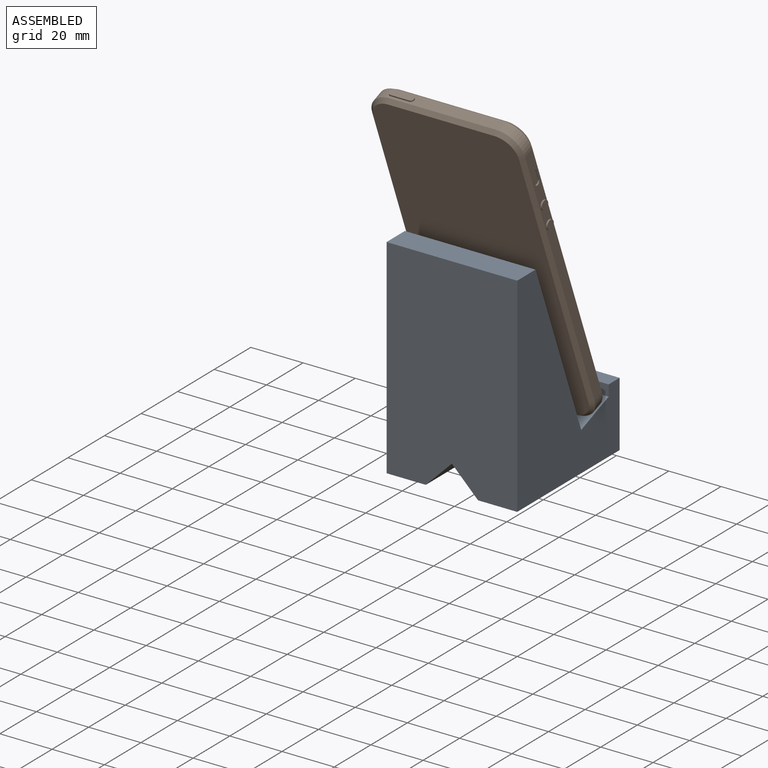
[diagram: assembled view]
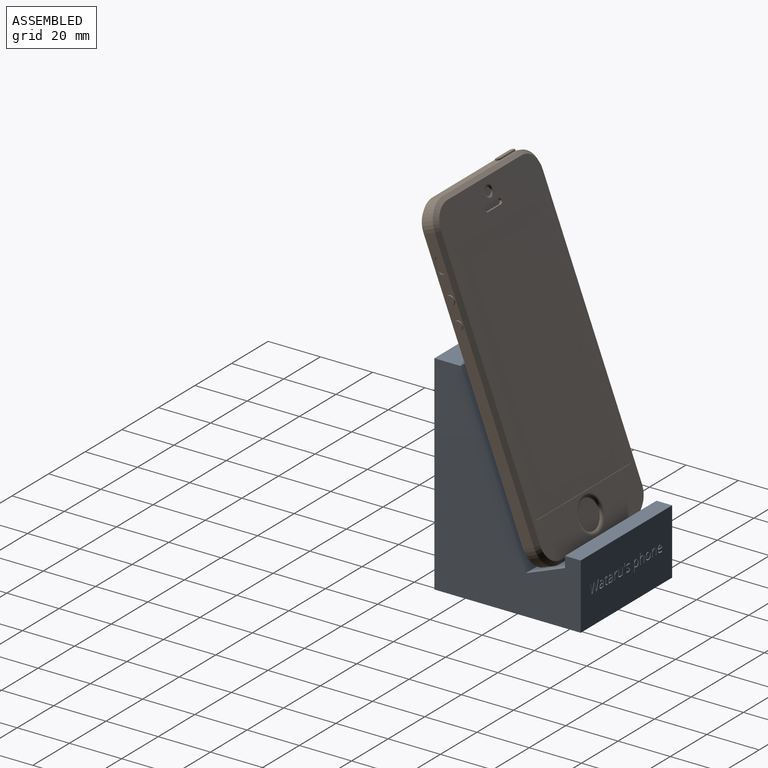
[diagram: assembled view, second angle]
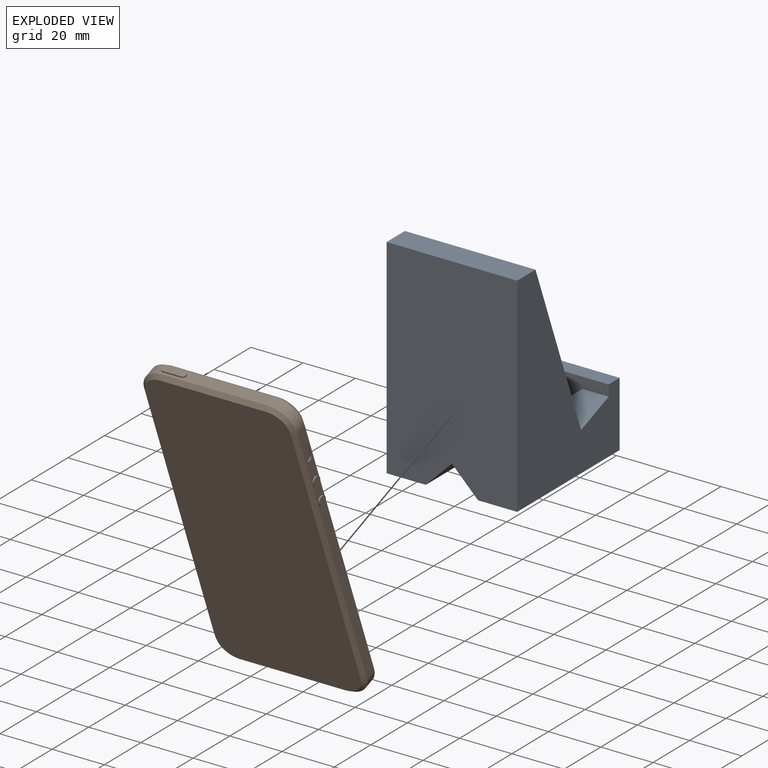
[diagram: exploded view]
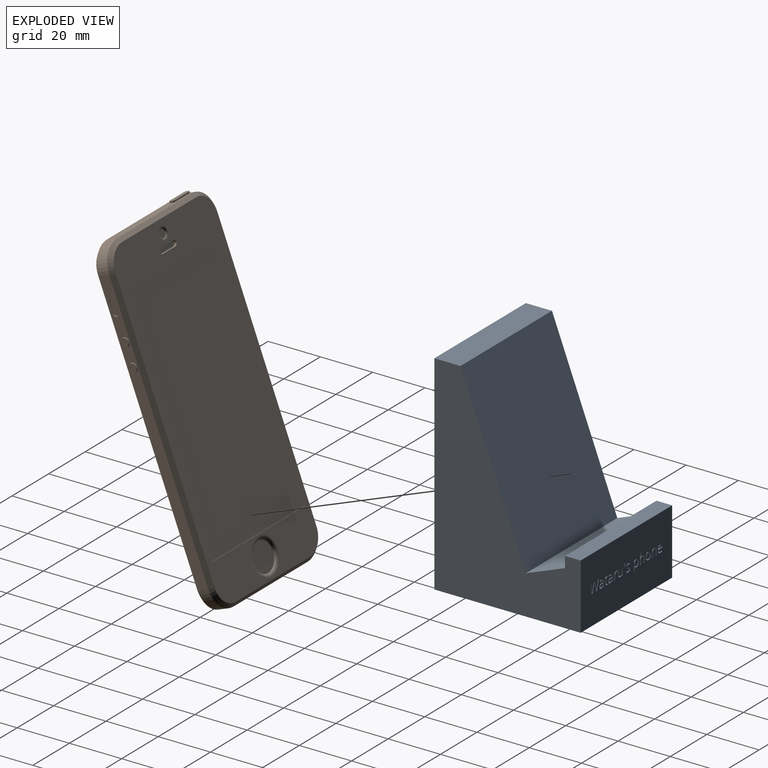
[diagram: exploded view, second angle]
ASSEMBLY  parts=2 mates=2
PART A: 284 faces, bbox 50x56x80 mm
  f0: plane 50x25mm, normal (0,1,0), area 1199.6mm2, adj f1,f5,f8,f14,f16,f17,f18,f19
  f1: plane 80x56mm, normal (-1,0,0), area 2405.8mm2, adj f0,f2,f4,f8,f9,f10,f14,f15
  f2: plane 50x10mm, normal (0,0,1), area 500mm2, adj f1,f4,f5,f10
  f3: plane 20.77x10mm, normal (0.89,0.45,0), area 210.7mm2, adj f7,f8,f9,f13,f15
  f4: plane 80x50mm, normal (0,-1,0), area 3899.9mm2, adj f1,f2,f5,f8,f11,f12,f13,f282
  f5: plane 80x56mm, normal (1,0,0), area 2405.8mm2, adj f0,f2,f4,f8,f9,f10,f14,f15
  f6: plane 20.77x10mm, normal (-0.89,0.45,0), area 210.7mm2, adj f7,f8,f9,f12,f15
  f7: plane 20x16.92mm, normal (0,1,0), area 238.4mm2, adj f3,f6,f9,f11,f282,f283
  f8: plane 56x50mm, normal (0,0,-1), area 1750mm2, adj f0,f1,f3,f4,f5,f6,f12,f13
  f9: plane 50x15mm, normal (0,-0.36,0.93), area 535.7mm2, adj f1,f3,f5,f6,f7,f10,f15
  f10: plane 65x50mm, normal (0,0.93,0.36), area 3482.1mm2, adj f1,f2,f5,f9
  f11: plane 40x0.01mm, normal (0,0,-1), area 0.4mm2, adj f4,f7,f282,f283
  f12: plane 40x0.01mm, normal (-1,0,0), area 0.2mm2, adj f4,f6,f8,f282
  f13: plane 40x0.01mm, normal (1,0,0), area 0.2mm2, adj f3,f4,f8,f283
  f14: plane 50x6mm, normal (0,0,1), area 300mm2, adj f0,f1,f5,f15
  f15: plane 50x25mm, normal (0,-1,0), area 834.6mm2, adj f1,f3,f5,f6,f8,f9,f14
  f16: extruded ~1x0.48mm, area 0.5mm2, adj f0,f17,f40,f41
  f17: extruded ~1x0.7mm, area 0.8mm2, adj f0,f16,f18,f41
  f18: extruded ~1x0.51mm, area 0.6mm2, adj f0,f17,f19,f41
  f19: extruded ~1x0.19mm, area 0.2mm2, adj f0,f18,f20,f41
  f20: extruded ~1x0.2mm, area 0.2mm2, adj f0,f19,f21,f41
  f21: extruded ~1x0.27mm, area 0.3mm2, adj f0,f20,f22,f41
  f22: extruded ~1x0.47mm, area 0.5mm2, adj f0,f21,f23,f41
  f23: extruded ~1x0.79mm, area 0.8mm2, adj f0,f22,f24,f41
  f24: plane 1x0.36mm, normal (0.92,0,0.4), area 0.4mm2, adj f0,f23,f25,f41
  f25: extruded ~1x0.92mm, area 0.9mm2, adj f0,f24,f26,f41
  f26: extruded ~1x0.79mm, area 0.8mm2, adj f0,f25,f27,f41
  f27: extruded ~1x0.56mm, area 0.7mm2, adj f0,f26,f28,f41
  f28: extruded ~1x0.34mm, area 0.4mm2, adj f0,f27,f29,f41
  f29: extruded ~1x0.26mm, area 0.4mm2, adj f0,f28,f30,f41
  f30: extruded ~1x0.57mm, area 0.6mm2, adj f0,f29,f31,f41
  f31: extruded ~1x0.57mm, area 0.6mm2, adj f0,f30,f32,f41
  f32: extruded ~1x0.29mm, area 0.3mm2, adj f0,f31,f33,f41
  f33: extruded ~1x0.33mm, area 0.4mm2, adj f0,f32,f34,f41
  f34: extruded ~1x0.53mm, area 0.5mm2, adj f0,f33,f35,f41
  f35: extruded ~1x0.46mm, area 0.5mm2, adj f0,f34,f36,f41
  f36: extruded ~1x0.45mm, area 0.5mm2, adj f0,f35,f37,f41
  f37: plane 1x0.41mm, normal (-1,0,0), area 0.4mm2, adj f0,f36,f38,f41
  f38: extruded ~1x0.9mm, area 0.9mm2, adj f0,f37,f39,f41
  f39: extruded ~1x0.85mm, area 0.9mm2, adj f0,f38,f40,f41
  f40: extruded ~1x0.62mm, area 0.7mm2, adj f0,f16,f39,f41
  f41: plane 3x2.05mm, normal (0,1,0), area 2.6mm2, adj f16,f17,f18,f19,f20,f21,f22,f23
  f42: plane 1x0.44mm, normal (0,0,1), area 0.4mm2, adj f0,f43,f59,f60
  f43: plane 1.89x1mm, normal (1,0,0), area 1.9mm2, adj f0,f42,f44,f60
  f44: extruded ~1x0.8mm, area 0.9mm2, adj f0,f43,f45,f60
  f45: extruded ~1x0.8mm, area 0.9mm2, adj f0,f44,f46,f60
  f46: extruded ~1x0.55mm, area 0.6mm2, adj f0,f45,f47,f60
  f47: extruded ~1x0.37mm, area 0.5mm2, adj f0,f46,f48,f60
  f48: plane 1x0.03mm, normal (0,0,-1), area 0mm2, adj f0,f47,f49,f60
  f49: extruded ~1x0.37mm, area 0.4mm2, adj f0,f48,f50,f60
  f50: plane 1.25x1mm, normal (1,0,0), area 1.2mm2, adj f0,f49,f51,f60
  f51: plane 1x0.44mm, normal (0,0,-1), area 0.4mm2, adj f0,f50,f52,f60
  f52: plane 4.11x1mm, normal (-1,0,0), area 4.1mm2, adj f0,f51,f53,f60
  f53: plane 1x0.44mm, normal (0,0,1), area 0.4mm2, adj f0,f52,f54,f60
  f54: plane 1.52x1mm, normal (1,0,0), area 1.5mm2, adj f0,f53,f55,f60
  f55: extruded ~1x0.81mm, area 0.9mm2, adj f0,f54,f56,f60
  f56: extruded ~1x0.67mm, area 0.7mm2, adj f0,f55,f57,f60
  f57: extruded ~1x0.51mm, area 0.6mm2, adj f0,f56,f58,f60
  f58: extruded ~1x0.53mm, area 0.6mm2, adj f0,f57,f59,f60
  f59: plane 1.87x1mm, normal (-1,0,0), area 1.9mm2, adj f0,f42,f58,f60
  f60: plane 4.11x2.42mm, normal (0,1,0), area 3.6mm2, adj f42,f43,f44,f45,f46,f47,f48,f49
  f61: plane 1x0.44mm, normal (0,0,1), area 0.4mm2, adj f0,f62,f77,f78
  f62: plane 1.89x1mm, normal (1,0,0), area 1.9mm2, adj f0,f61,f63,f78
  f63: extruded ~1x0.81mm, area 0.9mm2, adj f0,f62,f64,f78
  f64: extruded ~1x0.79mm, area 0.8mm2, adj f0,f63,f65,f78
  f65: extruded ~1x0.54mm, area 0.6mm2, adj f0,f64,f66,f78
  f66: extruded ~1x0.38mm, area 0.5mm2, adj f0,f65,f67,f78
  f67: plane 1x0.02mm, normal (0,0,-1), area 0mm2, adj f0,f66,f68,f78
  f68: plane 1x0.4mm, normal (0.98,0,-0.18), area 0.4mm2, adj f0,f67,f69,f78
  f69: plane 1x0.36mm, normal (0,0,-1), area 0.4mm2, adj f0,f68,f70,f78
  f70: plane 2.9x1mm, normal (-1,0,0), area 2.9mm2, adj f0,f69,f71,f78
  f71: plane 1x0.44mm, normal (0,0,1), area 0.4mm2, adj f0,f70,f72,f78
  f72: plane 1.52x1mm, normal (1,0,0), area 1.5mm2, adj f0,f71,f73,f78
  f73: extruded ~1x0.81mm, area 0.9mm2, adj f0,f72,f74,f78
  f74: extruded ~1x0.67mm, area 0.7mm2, adj f0,f73,f75,f78
  f75: extruded ~1x0.51mm, area 0.6mm2, adj f0,f74,f76,f78
  f76: extruded ~1x0.53mm, area 0.6mm2, adj f0,f75,f77,f78
  f77: plane 1.87x1mm, normal (-1,0,0), area 1.9mm2, adj f0,f61,f76,f78
  f78: plane 2.95x2.42mm, normal (0,1,0), area 3mm2, adj f61,f62,f63,f64,f65,f66,f67,f68
  f79: plane 1x0.33mm, normal (0,0,1), area 0.3mm2, adj f0,f80,f105,f106
  f80: plane 1.98x1mm, normal (1,0,0), area 2mm2, adj f0,f79,f81,f106
  f81: extruded ~1x0.74mm, area 0.8mm2, adj f0,f80,f82,f106
  f82: extruded ~1x0.77mm, area 0.8mm2, adj f0,f81,f83,f106
  f83: extruded ~1x0.51mm, area 0.5mm2, adj f0,f82,f84,f106
  f84: extruded ~1x0.47mm, area 0.5mm2, adj f0,f83,f85,f106
  f85: plane 1x0.34mm, normal (-0.93,0,0.37), area 0.4mm2, adj f0,f84,f86,f106
  f86: extruded ~1x0.82mm, area 0.9mm2, adj f0,f85,f87,f106
  f87: extruded ~1x0.47mm, area 0.5mm2, adj f0,f86,f88,f106
  f88: extruded ~1x0.5mm, area 0.5mm2, adj f0,f87,f89,f106
  f89: plane 1x0.18mm, normal (-1,0,0), area 0.2mm2, adj f0,f88,f90,f106
  f90: plane 1x0.49mm, normal (-0.03,0,-1), area 0.5mm2, adj f0,f89,f91,f106
  f91: extruded ~1.4x1mm, area 1.9mm2, adj f0,f90,f92,f106
  f92: extruded ~1x0.63mm, area 0.7mm2, adj f0,f91,f93,f106
  f93: extruded ~1x0.68mm, area 0.7mm2, adj f0,f92,f94,f106
  f94: extruded ~1x0.54mm, area 0.6mm2, adj f0,f93,f95,f106
  f95: extruded ~1x0.43mm, area 0.6mm2, adj f0,f94,f96,f106
  f96: plane 1x0.02mm, normal (0,0,1), area 0mm2, adj f0,f95,f105,f106
  f97: extruded ~1x0.4mm, area 0.4mm2, adj f98,f104,f106,f107
  f98: extruded ~1x0.36mm, area 0.4mm2, adj f97,f99,f106,f107
  f99: extruded ~1x0.45mm, area 0.5mm2, adj f98,f100,f106,f107
  f100: extruded ~1x0.75mm, area 0.8mm2, adj f99,f101,f106,f107
  f101: plane 1x0.44mm, normal (0.04,0,1), area 0.4mm2, adj f100,f102,f106,f107
  f102: plane 1x0.26mm, normal (-1,0,0), area 0.3mm2, adj f101,f103,f106,f107
  f103: extruded ~1x0.63mm, area 0.7mm2, adj f102,f104,f106,f107
  f104: extruded ~1x0.64mm, area 0.7mm2, adj f97,f103,f106,f107
  f105: plane 1x0.41mm, normal (-0.98,0,0.21), area 0.4mm2, adj f0,f79,f96,f106
  f106: plane 3x2.32mm, normal (0,1,0), area 3.3mm2, adj f79,f80,f81,f82,f83,f84,f85,f86
  f107: plane 1.42x1.12mm, normal (0,1,0), area 1.3mm2, adj f97,f98,f99,f100,f101,f102,f103,f104
  f108: plane 1x0.49mm, normal (0,0,-1), area 0.5mm2, adj f0,f109,f111,f112
  f109: plane 1.4x1mm, normal (-1,0,0.08), area 1.4mm2, adj f0,f108,f110,f112
  f110: plane 1x0.28mm, normal (0,0,1), area 0.3mm2, adj f0,f109,f111,f112
  f111: plane 1.4x1mm, normal (1,0,0.08), area 1.4mm2, adj f0,f108,f110,f112
  f112: plane 1.4x0.49mm, normal (0,1,0), area 0.5mm2, adj f108,f109,f110,f111
  f113: plane 1x0.44mm, normal (0,0,-1), area 0.4mm2, adj f0,f114,f129,f130
  f114: plane 1.9x1mm, normal (-1,0,0), area 1.9mm2, adj f0,f113,f115,f130
  f115: extruded ~1x0.8mm, area 0.9mm2, adj f0,f114,f116,f130
  f116: extruded ~1x0.79mm, area 0.9mm2, adj f0,f115,f117,f130
  f117: extruded ~1x0.55mm, area 0.6mm2, adj f0,f116,f118,f130
  f118: extruded ~1x0.37mm, area 0.5mm2, adj f0,f117,f119,f130
  f119: plane 1x0.02mm, normal (0,0,1), area 0mm2, adj f0,f118,f120,f130
  f120: plane 1x0.39mm, normal (-0.99,0,0.16), area 0.4mm2, adj f0,f119,f121,f130
  f121: plane 1x0.36mm, normal (0,0,1), area 0.4mm2, adj f0,f120,f122,f130
  f122: plane 2.9x1mm, normal (1,0,0), area 2.9mm2, adj f0,f121,f123,f130
  f123: plane 1x0.44mm, normal (0,0,-1), area 0.4mm2, adj f0,f122,f124,f130
  f124: plane 1.52x1mm, normal (-1,0,0), area 1.5mm2, adj f0,f123,f125,f130
  f125: extruded ~1x0.81mm, area 0.9mm2, adj f0,f124,f126,f130
  f126: extruded ~1x0.67mm, area 0.7mm2, adj f0,f125,f127,f130
  f127: extruded ~1x0.5mm, area 0.5mm2, adj f0,f126,f128,f130
  f128: extruded ~1x0.53mm, area 0.6mm2, adj f0,f127,f129,f130
  f129: plane 1.88x1mm, normal (1,0,0), area 1.9mm2, adj f0,f113,f128,f130
  f130: plane 2.95x2.42mm, normal (0,1,0), area 3.1mm2, adj f113,f114,f115,f116,f117,f118,f119,f120
  f131: extruded ~1x0.5mm, area 0.5mm2, adj f0,f132,f143,f144
  f132: extruded ~1x0.44mm, area 0.6mm2, adj f0,f131,f133,f144
  f133: plane 1x0.02mm, normal (0,0,-1), area 0mm2, adj f0,f132,f134,f144
  f134: plane 1x0.54mm, normal (1,0,-0.09), area 0.5mm2, adj f0,f133,f135,f144
  f135: plane 1x0.36mm, normal (0,0,-1), area 0.4mm2, adj f0,f134,f136,f144
  f136: plane 2.9x1mm, normal (-1,0,0), area 2.9mm2, adj f0,f135,f137,f144
  f137: plane 1x0.44mm, normal (0,0,1), area 0.4mm2, adj f0,f136,f138,f144
  f138: plane 1.55x1mm, normal (1,0,0), area 1.6mm2, adj f0,f137,f139,f144
  f139: extruded ~1x0.71mm, area 0.8mm2, adj f0,f138,f140,f144
  f140: extruded ~1x0.6mm, area 0.7mm2, adj f0,f139,f141,f144
  f141: extruded ~1x0.32mm, area 0.3mm2, adj f0,f140,f142,f144
  f142: plane 1x0.41mm, normal (0.99,0,0.15), area 0.4mm2, adj f0,f141,f143,f144
  f143: extruded ~1x0.35mm, area 0.3mm2, adj f0,f131,f142,f144
  f144: plane 2.95x1.67mm, normal (0,1,0), area 1.8mm2, adj f131,f132,f133,f134,f135,f136,f137,f138
  f145: extruded ~1x0.34mm, area 0.4mm2, adj f0,f146,f163,f164
  f146: extruded ~1x0.4mm, area 0.4mm2, adj f0,f145,f147,f164
  f147: plane 1.71x1mm, normal (1,0,0), area 1.7mm2, adj f0,f146,f148,f164
  f148: plane 1x0.84mm, normal (0,0,1), area 0.8mm2, adj f0,f147,f149,f164
  f149: plane 1x0.34mm, normal (1,0,0), area 0.3mm2, adj f0,f148,f150,f164
  f150: plane 1x0.84mm, normal (0,0,-1), area 0.8mm2, adj f0,f149,f151,f164
  f151: plane 1x0.67mm, normal (1,0,0), area 0.7mm2, adj f0,f150,f152,f164
  f152: plane 1x0.25mm, normal (0,0,-1), area 0.3mm2, adj f0,f151,f153,f164
  f153: plane 1x0.62mm, normal (-0.96,0,-0.29), area 0.6mm2, adj f0,f152,f154,f164
  f154: plane 1x0.42mm, normal (-0.4,0,-0.92), area 0.5mm2, adj f0,f153,f155,f164
  f155: plane 1x0.21mm, normal (-1,0,0), area 0.2mm2, adj f0,f154,f156,f164
  f156: plane 1x0.42mm, normal (0,0,1), area 0.4mm2, adj f0,f155,f157,f164
  f157: plane 1.72x1mm, normal (-1,0,0), area 1.7mm2, adj f0,f156,f158,f164
  f158: extruded ~1x0.89mm, area 1.4mm2, adj f0,f157,f159,f164
  f159: extruded ~1x0.25mm, area 0.3mm2, adj f0,f158,f160,f164
  f160: extruded ~1x0.21mm, area 0.2mm2, adj f0,f159,f161,f164
  f161: plane 1x0.34mm, normal (1,0,0), area 0.3mm2, adj f0,f160,f162,f164
  f162: extruded ~1x0.17mm, area 0.2mm2, adj f0,f161,f163,f164
  f163: extruded ~1x0.23mm, area 0.2mm2, adj f0,f145,f162,f164
  f164: plane 3.62x1.72mm, normal (0,1,0), area 2.2mm2, adj f145,f146,f147,f148,f149,f150,f151,f152
  f165: plane 1x0.33mm, normal (0,0,1), area 0.3mm2, adj f0,f166,f191,f192
  f166: plane 1.98x1mm, normal (1,0,0), area 2mm2, adj f0,f165,f167,f192
  f167: extruded ~1x0.74mm, area 0.8mm2, adj f0,f166,f168,f192
  f168: extruded ~1x0.77mm, area 0.8mm2, adj f0,f167,f169,f192
  f169: extruded ~1x0.51mm, area 0.5mm2, adj f0,f168,f170,f192
  f170: extruded ~1x0.47mm, area 0.5mm2, adj f0,f169,f171,f192
  f171: plane 1x0.34mm, normal (-0.93,0,0.37), area 0.4mm2, adj f0,f170,f172,f192
  f172: extruded ~1x0.82mm, area 0.9mm2, adj f0,f171,f173,f192
  f173: extruded ~1x0.47mm, area 0.5mm2, adj f0,f172,f174,f192
  f174: extruded ~1x0.5mm, area 0.5mm2, adj f0,f173,f175,f192
  f175: plane 1x0.18mm, normal (-1,0,0), area 0.2mm2, adj f0,f174,f176,f192
  f176: plane 1x0.49mm, normal (-0.03,0,-1), area 0.5mm2, adj f0,f175,f177,f192
  f177: extruded ~1.4x1mm, area 1.9mm2, adj f0,f176,f178,f192
  f178: extruded ~1x0.63mm, area 0.7mm2, adj f0,f177,f179,f192
  f179: extruded ~1x0.68mm, area 0.7mm2, adj f0,f178,f180,f192
  f180: extruded ~1x0.54mm, area 0.6mm2, adj f0,f179,f181,f192
  f181: extruded ~1x0.43mm, area 0.6mm2, adj f0,f180,f182,f192
  f182: plane 1x0.02mm, normal (0,0,1), area 0mm2, adj f0,f181,f191,f192
  f183: extruded ~1x0.4mm, area 0.4mm2, adj f184,f190,f192,f193
  f184: extruded ~1x0.36mm, area 0.4mm2, adj f183,f185,f192,f193
  f185: extruded ~1x0.45mm, area 0.5mm2, adj f184,f186,f192,f193
  f186: extruded ~1x0.75mm, area 0.8mm2, adj f185,f187,f192,f193
  f187: plane 1x0.44mm, normal (0.04,0,1), area 0.4mm2, adj f186,f188,f192,f193
  f188: plane 1x0.26mm, normal (-1,0,0), area 0.3mm2, adj f187,f189,f192,f193
  f189: extruded ~1x0.63mm, area 0.7mm2, adj f188,f190,f192,f193
  f190: extruded ~1x0.64mm, area 0.7mm2, adj f183,f189,f192,f193
  f191: plane 1x0.41mm, normal (-0.98,0,0.21), area 0.4mm2, adj f0,f165,f182,f192
  f192: plane 3x2.32mm, normal (0,1,0), area 3.3mm2, adj f165,f166,f167,f168,f169,f170,f171,f172
  f193: plane 1.42x1.12mm, normal (0,1,0), area 1.3mm2, adj f183,f184,f185,f186,f187,f188,f189,f190
  f194: extruded ~1x0.88mm, area 1mm2, adj f0,f195,f218,f219
  f195: extruded ~1.11x1mm, area 1.2mm2, adj f0,f194,f196,f219
  f196: extruded ~1.1x1mm, area 1.2mm2, adj f0,f195,f197,f219
  f197: extruded ~1x0.89mm, area 1mm2, adj f0,f196,f198,f219
  f198: extruded ~1x0.52mm, area 0.5mm2, adj f0,f197,f199,f219
  f199: extruded ~1x0.39mm, area 0.5mm2, adj f0,f198,f200,f219
  f200: plane 1x0.02mm, normal (0,0,-1), area 0mm2, adj f0,f199,f201,f219
  f201: plane 1x0.4mm, normal (0.99,0,-0.15), area 0.4mm2, adj f0,f200,f202,f219
  f202: plane 1x0.36mm, normal (0,0,-1), area 0.4mm2, adj f0,f201,f203,f219
  f203: plane 4.2x1mm, normal (-1,0,0), area 4.2mm2, adj f0,f202,f204,f219
  f204: plane 1x0.44mm, normal (0,0,1), area 0.4mm2, adj f0,f203,f205,f219
  f205: plane 1.19x1mm, normal (1,0,0), area 1.2mm2, adj f0,f204,f206,f219
  f206: extruded ~1x0.48mm, area 0.5mm2, adj f0,f205,f207,f219
  f207: plane 1x0.03mm, normal (0,0,1), area 0mm2, adj f0,f206,f208,f219
  f208: extruded ~1x0.39mm, area 0.5mm2, adj f0,f207,f218,f219
  f209: extruded ~1x0.6mm, area 0.7mm2, adj f210,f217,f219,f220
  f210: extruded ~1x0.83mm, area 0.9mm2, adj f209,f211,f219,f220
  f211: extruded ~1x0.84mm, area 0.9mm2, adj f210,f212,f219,f220
  f212: extruded ~1x0.59mm, area 0.7mm2, adj f211,f213,f219,f220
  f213: extruded ~1x0.65mm, area 0.7mm2, adj f212,f214,f219,f220
  f214: extruded ~1x0.87mm, area 0.9mm2, adj f213,f215,f219,f220
  f215: plane 1x0.1mm, normal (1,0,0), area 0.1mm2, adj f214,f216,f219,f220
  f216: extruded ~1x0.78mm, area 0.8mm2, adj f215,f217,f219,f220
  f217: extruded ~1x0.64mm, area 0.7mm2, adj f209,f216,f219,f220
  f218: extruded ~1x0.52mm, area 0.5mm2, adj f0,f194,f208,f219
  f219: plane 4.25x2.55mm, normal (0,1,0), area 4.2mm2, adj f194,f195,f196,f197,f198,f199,f200,f201
  f220: plane 2.26x1.66mm, normal (0,1,0), area 3.1mm2, adj f209,f210,f211,f212,f213,f214,f215,f216
  f221: extruded ~1.09x1mm, area 1.2mm2, adj f0,f222,f237,f238
  f222: extruded ~1x0.97mm, area 1.1mm2, adj f0,f221,f223,f238
  f223: extruded ~1x0.98mm, area 1.1mm2, adj f0,f222,f224,f238
  f224: extruded ~1.1x1mm, area 1.2mm2, adj f0,f223,f225,f238
  f225: extruded ~1x0.8mm, area 0.8mm2, adj f0,f224,f226,f238
  f226: extruded ~1x0.52mm, area 0.7mm2, adj f0,f225,f227,f238
  f227: extruded ~1x0.69mm, area 0.7mm2, adj f0,f226,f228,f238
  f228: extruded ~1x0.99mm, area 1.1mm2, adj f0,f227,f237,f238
  f229: extruded ~1x0.84mm, area 0.9mm2, adj f230,f236,f238,f239
  f230: extruded ~1x0.65mm, area 0.7mm2, adj f229,f231,f238,f239
  f231: extruded ~1x0.66mm, area 0.7mm2, adj f230,f232,f238,f239
  f232: extruded ~1x0.84mm, area 0.9mm2, adj f231,f233,f238,f239
  f233: extruded ~1x0.85mm, area 0.9mm2, adj f232,f234,f238,f239
  f234: extruded ~1x0.65mm, area 0.7mm2, adj f233,f235,f238,f239
  f235: extruded ~1x0.65mm, area 0.7mm2, adj f234,f236,f238,f239
  f236: extruded ~1x0.85mm, area 0.9mm2, adj f229,f235,f238,f239
  f237: extruded ~1.11x1mm, area 1.2mm2, adj f0,f221,f228,f238
  f238: plane 3x2.66mm, normal (0,1,0), area 3.2mm2, adj f221,f222,f223,f224,f225,f226,f227,f228
  f239: plane 2.26x1.75mm, normal (0,1,0), area 3.3mm2, adj f229,f230,f231,f232,f233,f234,f235,f236
  f240: extruded ~1x0.5mm, area 0.5mm2, adj f0,f241,f258,f259
  f241: extruded ~1x0.44mm, area 0.5mm2, adj f0,f240,f242,f259
  f242: plane 1x0.39mm, normal (1,0,0), area 0.4mm2, adj f0,f241,f243,f259
  f243: extruded ~1x0.92mm, area 1mm2, adj f0,f242,f244,f259
  f244: extruded ~1x0.69mm, area 0.8mm2, adj f0,f243,f245,f259
  f245: extruded ~1x0.77mm, area 0.8mm2, adj f0,f244,f246,f259
  f246: plane 2x1mm, normal (0,0,1), area 2mm2, adj f0,f245,f247,f259
  f247: plane 1x0.28mm, normal (1,0,0), area 0.3mm2, adj f0,f246,f248,f259
  f248: extruded ~1x0.95mm, area 1mm2, adj f0,f247,f249,f259
  f249: extruded ~1x0.86mm, area 1mm2, adj f0,f248,f250,f259
  f250: extruded ~1x0.93mm, area 1.1mm2, adj f0,f249,f251,f259
  f251: extruded ~1.11x1mm, area 1.2mm2, adj f0,f250,f252,f259
  f252: extruded ~1.09x1mm, area 1.2mm2, adj f0,f251,f258,f259
  f253: extruded ~1x0.53mm, area 0.6mm2, adj f254,f257,f259,f260
  f254: extruded ~1x0.64mm, area 0.7mm2, adj f253,f255,f259,f260
  f255: plane 1.52x1mm, normal (0,0,-1), area 1.5mm2, adj f254,f256,f259,f260
  f256: extruded ~1x0.63mm, area 0.7mm2, adj f255,f257,f259,f260
  f257: extruded ~1x0.56mm, area 0.6mm2, adj f253,f256,f259,f260
  f258: extruded ~1.01x1mm, area 1.1mm2, adj f0,f240,f252,f259
  f259: plane 3x2.45mm, normal (0,1,0), area 3.3mm2, adj f240,f241,f242,f243,f244,f245,f246,f247
  f260: plane 1.52x0.86mm, normal (0,1,0), area 1mm2, adj f253,f254,f255,f256,f257
  f261: plane 3.86x1.03mm, normal (0.97,0,0.26), area 4mm2, adj f0,f262,f280,f281
  f262: plane 1x0.48mm, normal (0,0,-1), area 0.5mm2, adj f0,f261,f263,f281
  f263: plane 2.38x1mm, normal (-0.97,0,-0.25), area 2.5mm2, adj f0,f262,f264,f281
  f264: extruded ~1x0.91mm, area 0.9mm2, adj f0,f263,f265,f281
  f265: extruded ~1x0.93mm, area 1mm2, adj f0,f264,f266,f281
  f266: plane 2.37x1mm, normal (0.96,0,-0.29), area 2.5mm2, adj f0,f265,f267,f281
  f267: plane 1x0.48mm, normal (0,0,-1), area 0.5mm2, adj f0,f266,f268,f281
  f268: plane 2.35x1mm, normal (-0.96,0,-0.28), area 2.4mm2, adj f0,f267,f269,f281
  f269: extruded ~1x0.95mm, area 1mm2, adj f0,f268,f270,f281
  f270: extruded ~1x0.91mm, area 0.9mm2, adj f0,f269,f271,f281
  f271: plane 2.39x1mm, normal (0.97,0,-0.25), area 2.5mm2, adj f0,f270,f272,f281
  f272: plane 1x0.48mm, normal (0,0,-1), area 0.5mm2, adj f0,f271,f273,f281
  f273: plane 3.86x1.03mm, normal (-0.97,0,0.26), area 4mm2, adj f0,f272,f274,f281
  f274: plane 1x0.44mm, normal (0,0,1), area 0.4mm2, adj f0,f273,f275,f281
  f275: plane 2.57x1mm, normal (0.96,0,0.28), area 2.7mm2, adj f0,f274,f276,f281
  f276: extruded ~1x0.76mm, area 0.8mm2, adj f0,f275,f277,f281
  f277: extruded ~1x0.31mm, area 0.3mm2, adj f0,f276,f278,f281
  f278: extruded ~1x0.43mm, area 0.5mm2, adj f0,f277,f279,f281
  f279: plane 2.59x1mm, normal (-0.96,0,0.29), area 2.7mm2, adj f0,f278,f280,f281
  f280: plane 1x0.44mm, normal (0,0,1), area 0.4mm2, adj f0,f261,f279,f281
  f281: plane 4.87x3.86mm, normal (0,1,0), area 6.4mm2, adj f261,f262,f263,f264,f265,f266,f267,f268
  f282: plane 40x10mm, normal (-0.71,0,-0.71), area 565.4mm2, adj f4,f7,f11,f12
  f283: plane 40x10mm, normal (0.71,0,-0.71), area 565.4mm2, adj f4,f7,f11,f13
PART B: 147 faces, bbox 59.1x7.1x124.4 mm
  f0: cylinder r=9mm len=9mm, axis (0,1,0), area 53.6mm2, adj f1,f8,f25,f33,f145
  f1: plane 40.56x4.25mm, normal (0,0,-1), area 118.1mm2, adj f0,f7,f27,f35,f54,f55,f56,f57
  f2: plane 40.56x4.25mm, normal (0,0,1), area 155.1mm2, adj f3,f5,f28,f36,f58,f62,f63
  f3: cylinder r=9mm len=9mm, axis (0,1,0), area 57.5mm2, adj f2,f6,f30,f38,f59,f60,f61
  f4: plane 120.95x55.68mm, normal (0,1,0), area 1829.4mm2, adj f11,f12,f13,f14,f15,f18,f19,f20
  f5: cylinder r=9mm len=9mm, axis (0,1,0), area 60.1mm2, adj f2,f8,f26,f34
  f6: plane 105.83x4.25mm, normal (-1,0,0), area 437.5mm2, adj f3,f7,f31,f39,f129,f130,f131,f136
  f7: cylinder r=9mm len=9mm, axis (0,1,0), area 60.1mm2, adj f1,f6,f29,f37
  f8: plane 105.83x4.25mm, normal (1,0,0), area 416.8mm2, adj f0,f5,f24,f32,f40,f42,f44,f45
  f9: plane 120.95x55.68mm, normal (0,-1,0), area 6685.4mm2, adj f24,f25,f26,f27,f28,f29,f30,f31
  f10: plane 10.9x10.9mm, normal (0,1,0), area 93.3mm2, adj f11
  f11: torus R=6.86mm, axis (0,-1,0), area 70.2mm2, adj f4,f10
  f12: cylinder r=1mm len=2mm, axis (0,1,0), area 3.1mm2, adj f4,f13,f15,f16
  f13: plane 7.08x1mm, normal (0,0,-1), area 7.1mm2, adj f4,f12,f14,f16
  f14: cylinder r=1mm len=2mm, axis (0,1,0), area 3.1mm2, adj f4,f13,f15,f16
  f15: plane 7.08x1mm, normal (0,0,1), area 7.1mm2, adj f4,f12,f14,f16
  f16: plane 9.08x2mm, normal (0,1,0), area 17.3mm2, adj f12,f13,f14,f15
  f17: plane 3x3mm, normal (0,1,0), area 7.1mm2, adj f18
  f18: torus R=2.37mm, axis (0,-1,0), area 12.4mm2, adj f4,f17
  f19: plane 90.39x0.25mm, normal (-1,0,0), area 22.6mm2, adj f4,f20,f22,f23
  f20: plane 51.7x0.25mm, normal (0,0,-1), area 12.9mm2, adj f4,f19,f21,f23
  f21: plane 90.39x0.25mm, normal (1,0,0), area 22.6mm2, adj f4,f20,f22,f23
  f22: plane 51.7x0.25mm, normal (0,0,1), area 12.9mm2, adj f4,f19,f21,f23
  f23: plane 90.39x51.7mm, normal (0,1,0), area 4673.2mm2, adj f19,f20,f21,f22
  f24: plane 105.83x1.44mm, normal (0.71,-0.71,0), area 215.5mm2, adj f8,f9,f25,f26
  f25: cone r=7.56mm half-angle=45deg, axis (0,1,0), area 26.5mm2, adj f0,f9,f24,f27
  f26: cone r=7.56mm half-angle=45deg, axis (0,1,0), area 26.5mm2, adj f5,f9,f24,f28
  f27: plane 40.56x1.44mm, normal (0,-0.71,-0.71), area 82.6mm2, adj f1,f9,f25,f29
  f28: plane 40.56x1.44mm, normal (0,-0.71,0.71), area 82.6mm2, adj f2,f9,f26,f30
  f29: cone r=7.56mm half-angle=45deg, axis (0,1,0), area 26.5mm2, adj f7,f9,f27,f31
  f30: cone r=7.56mm half-angle=45deg, axis (0,1,0), area 26.5mm2, adj f3,f9,f28,f31
  f31: plane 105.83x1.44mm, normal (-0.71,-0.71,0), area 215.5mm2, adj f6,f9,f29,f30
  f32: plane 105.83x1.44mm, normal (0.71,0.71,0), area 215.5mm2, adj f4,f8,f33,f34
  f33: cone r=9mm half-angle=45deg, axis (0,-1,0), area 26.5mm2, adj f0,f4,f32,f35
  f34: cone r=9mm half-angle=45deg, axis (0,-1,0), area 26.5mm2, adj f4,f5,f32,f36
  f35: plane 40.56x1.44mm, normal (0,0.71,-0.71), area 82.6mm2, adj f1,f4,f33,f37
  f36: plane 40.56x1.44mm, normal (0,0.71,0.71), area 82.6mm2, adj f2,f4,f34,f38
  f37: cone r=9mm half-angle=45deg, axis (0,-1,0), area 26.5mm2, adj f4,f7,f35,f39
  f38: cone r=9mm half-angle=45deg, axis (0,-1,0), area 26.5mm2, adj f3,f4,f36,f39
  f39: plane 105.83x1.44mm, normal (-0.71,0.71,0), area 215.5mm2, adj f4,f6,f37,f38
  f40: cylinder r=1.75mm len=3.5mm, axis (-1,0,0), area 6.4mm2, adj f8,f41
  f41: plane 3.5x3.5mm, normal (1,0,0), area 9.6mm2, adj f40
  f42: cylinder r=1.75mm len=3.5mm, axis (-1,0,0), area 6.4mm2, adj f8,f43
  f43: plane 3.5x3.5mm, normal (1,0,0), area 9.6mm2, adj f42
  f44: plane 3.48x0.58mm, normal (0,1,0), area 2mm2, adj f8,f45,f47,f48
  f45: cylinder r=1.26mm len=2.52mm, axis (1,0,0), area 2.3mm2, adj f8,f44,f46,f48
  f46: plane 3.48x0.58mm, normal (0,-1,0), area 2mm2, adj f8,f45,f47,f48
  f47: cylinder r=1.26mm len=2.52mm, axis (1,0,0), area 2.3mm2, adj f8,f44,f46,f48
  f48: plane 6x2.52mm, normal (1,0,0), area 13.8mm2, adj f44,f45,f46,f47
  f49: plane 9x2.75mm, normal (0,-1,0), area 24.7mm2, adj f50,f52,f53,f55
  f50: cylinder r=1.5mm len=3mm, axis (0,0,-1), area 13mm2, adj f49,f51,f53,f57
  f51: plane 9x2.75mm, normal (0,1,0), area 24.7mm2, adj f50,f52,f53,f56
  f52: cylinder r=1.5mm len=3mm, axis (0,0,-1), area 13mm2, adj f49,f51,f53,f54
  f53: plane 12x3mm, normal (0,0,-1), area 34.1mm2, adj f49,f50,f51,f52
  f54: torus R=1.75mm, axis (0,0,-1), area 2mm2, adj f1,f52,f55,f56
  f55: cylinder r=0.25mm len=9mm, axis (-1,0,0), area 3.5mm2, adj f1,f49,f54,f57
  f56: cylinder r=0.25mm len=9mm, axis (1,0,0), area 3.5mm2, adj f1,f51,f54,f57
  f57: torus R=1.75mm, axis (0,0,-1), area 2mm2, adj f1,f50,f55,f56
  f58: cylinder r=1.1mm len=2.2mm, axis (0,0,-1), area 2mm2, adj f2,f62,f63,f64
  f59: plane 0.58x0.04mm, normal (-1,0,0), area 0mm2, adj f3,f60,f63,f64
  f60: cylinder r=1.1mm len=2.2mm, axis (0,0,-1), area 2.6mm2, adj f3,f59,f61,f64
  f61: plane 0.58x0.04mm, normal (-1,0,0), area 0mm2, adj f3,f60,f62,f64
  f62: plane 7x0.58mm, normal (0,-1,0), area 4.1mm2, adj f2,f58,f61,f64
  f63: plane 7x0.58mm, normal (0,1,0), area 4.1mm2, adj f2,f58,f59,f64
  f64: plane 9.5x2.2mm, normal (0,0,1), area 19.9mm2, adj f58,f59,f60,f61,f62,f63
  f65: cylinder r=0.35mm len=1mm, axis (0,0,-1), area 2.2mm2, adj f1,f66
  f66: plane 0.7x0.7mm, normal (0,0,-1), area 0.4mm2, adj f65
  f67: cylinder r=0.35mm len=1mm, axis (0,0,-1), area 2.2mm2, adj f1,f68
  f68: plane 0.7x0.7mm, normal (0,0,-1), area 0.4mm2, adj f67
  f69: cylinder r=0.35mm len=1mm, axis (0,0,-1), area 2.2mm2, adj f1,f70
  f70: plane 0.7x0.7mm, normal (0,0,-1), area 0.4mm2, adj f69
  f71: cylinder r=0.35mm len=1mm, axis (0,0,-1), area 2.2mm2, adj f1,f72
  f72: plane 0.7x0.7mm, normal (0,0,-1), area 0.4mm2, adj f71
  f73: cylinder r=0.35mm len=1mm, axis (0,0,-1), area 2.2mm2, adj f1,f74
  f74: plane 0.7x0.7mm, normal (0,0,-1), area 0.4mm2, adj f73
  f75: cylinder r=0.35mm len=1mm, axis (0,0,-1), area 2.2mm2, adj f1,f76
  f76: plane 0.7x0.7mm, normal (0,0,-1), area 0.4mm2, adj f75
  f77: cylinder r=0.35mm len=1mm, axis (0,0,-1), area 2.2mm2, adj f1,f78
  f78: plane 0.7x0.7mm, normal (0,0,-1), area 0.4mm2, adj f77
  f79: cylinder r=0.35mm len=1mm, axis (0,0,-1), area 2.2mm2, adj f1,f80
  f80: plane 0.7x0.7mm, normal (0,0,-1), area 0.4mm2, adj f79
  f81: cylinder r=0.35mm len=1mm, axis (0,0,-1), area 2.2mm2, adj f1,f82
  f82: plane 0.7x0.7mm, normal (0,0,-1), area 0.4mm2, adj f81
  f83: cylinder r=0.35mm len=1mm, axis (0,0,-1), area 2.2mm2, adj f1,f84
  f84: plane 0.7x0.7mm, normal (0,0,-1), area 0.4mm2, adj f83
  f85: cylinder r=0.35mm len=1mm, axis (0,0,-1), area 2.2mm2, adj f1,f86
  f86: plane 0.7x0.7mm, normal (0,0,-1), area 0.4mm2, adj f85
  f87: cylinder r=0.35mm len=1mm, axis (0,0,-1), area 2.2mm2, adj f1,f88
  f88: plane 0.7x0.7mm, normal (0,0,-1), area 0.4mm2, adj f87
  f89: cylinder r=0.35mm len=1mm, axis (0,0,-1), area 2.2mm2, adj f1,f90
  f90: plane 0.7x0.7mm, normal (0,0,-1), area 0.4mm2, adj f89
  f91: cylinder r=0.35mm len=1mm, axis (0,0,-1), area 2.2mm2, adj f1,f92
  f92: plane 0.7x0.7mm, normal (0,0,-1), area 0.4mm2, adj f91
  f93: cylinder r=0.35mm len=1mm, axis (0,0,-1), area 2.2mm2, adj f1,f94
  f94: plane 0.7x0.7mm, normal (0,0,-1), area 0.4mm2, adj f93
  f95: cylinder r=0.35mm len=1mm, axis (0,0,-1), area 2.2mm2, adj f1,f96
  f96: plane 0.7x0.7mm, normal (0,0,-1), area 0.4mm2, adj f95
  f97: cylinder r=0.35mm len=1mm, axis (0,0,-1), area 2.2mm2, adj f1,f98
  f98: plane 0.7x0.7mm, normal (0,0,-1), area 0.4mm2, adj f97
  f99: cylinder r=0.35mm len=1mm, axis (0,0,-1), area 2.2mm2, adj f1,f100
  f100: plane 0.7x0.7mm, normal (0,0,-1), area 0.4mm2, adj f99
  f101: cylinder r=0.35mm len=1mm, axis (0,0,-1), area 2.2mm2, adj f1,f102
  f102: plane 0.7x0.7mm, normal (0,0,-1), area 0.4mm2, adj f101
  f103: cylinder r=0.35mm len=1mm, axis (0,0,-1), area 2.2mm2, adj f1,f104
  f104: plane 0.7x0.7mm, normal (0,0,-1), area 0.4mm2, adj f103
  f105: cylinder r=0.35mm len=1mm, axis (0,0,-1), area 2.2mm2, adj f1,f106
  f106: plane 0.7x0.7mm, normal (0,0,-1), area 0.4mm2, adj f105
  f107: cylinder r=0.35mm len=1mm, axis (0,0,-1), area 2.2mm2, adj f1,f108
  f108: plane 0.7x0.7mm, normal (0,0,-1), area 0.4mm2, adj f107
  f109: cylinder r=0.35mm len=1mm, axis (0,0,-1), area 2.2mm2, adj f1,f110
  f110: plane 0.7x0.7mm, normal (0,0,-1), area 0.4mm2, adj f109
  f111: cylinder r=0.35mm len=1mm, axis (0,0,-1), area 2.2mm2, adj f1,f112
  f112: plane 0.7x0.7mm, normal (0,0,-1), area 0.4mm2, adj f111
  f113: cylinder r=0.35mm len=1mm, axis (0,0,-1), area 2.2mm2, adj f1,f114
  f114: plane 0.7x0.7mm, normal (0,0,-1), area 0.4mm2, adj f113
  f115: cylinder r=0.35mm len=1mm, axis (0,0,-1), area 2.2mm2, adj f1,f116
  f116: plane 0.7x0.7mm, normal (0,0,-1), area 0.4mm2, adj f115
  f117: cylinder r=0.35mm len=1mm, axis (0,0,-1), area 2.2mm2, adj f1,f118
  f118: plane 0.7x0.7mm, normal (0,0,-1), area 0.4mm2, adj f117
  f119: cylinder r=0.35mm len=1mm, axis (0,0,-1), area 2.2mm2, adj f1,f120
  f120: plane 0.7x0.7mm, normal (0,0,-1), area 0.4mm2, adj f119
  f121: cylinder r=0.35mm len=1mm, axis (0,0,-1), area 2.2mm2, adj f1,f122
  f122: plane 0.7x0.7mm, normal (0,0,-1), area 0.4mm2, adj f121
  f123: cylinder r=0.35mm len=1mm, axis (0,0,-1), area 2.2mm2, adj f1,f124
  f124: plane 0.7x0.7mm, normal (0,0,-1), area 0.4mm2, adj f123
  f125: cylinder r=0.35mm len=1mm, axis (0,0,-1), area 2.2mm2, adj f1,f126
  f126: plane 0.7x0.7mm, normal (0,0,-1), area 0.4mm2, adj f125
  f127: cylinder r=0.35mm len=1mm, axis (0,0,-1), area 2.2mm2, adj f1,f128
  f128: plane 0.7x0.7mm, normal (0,0,-1), area 0.4mm2, adj f127
  f129: plane 7x0.1mm, normal (0,1,0), area 0.7mm2, adj f6,f130,f136,f137
  f130: cylinder r=0.75mm len=1.5mm, axis (-1,0,0), area 0.2mm2, adj f6,f129,f131,f137
  f131: plane 7x0.1mm, normal (0,-1,0), area 0.7mm2, adj f6,f130,f136,f137
  f132: cylinder r=0.65mm len=1.3mm, axis (-1,0,0), area 0.2mm2, adj f133,f135,f137,f138
  f133: plane 7x0.1mm, normal (0,-1,0), area 0.7mm2, adj f132,f134,f137,f138
  f134: cylinder r=0.65mm len=1.3mm, axis (-1,0,0), area 0.2mm2, adj f133,f135,f137,f138
  f135: plane 7x0.1mm, normal (0,1,0), area 0.7mm2, adj f132,f134,f137,f138
  f136: cylinder r=0.75mm len=1.5mm, axis (-1,0,0), area 0.2mm2, adj f6,f129,f131,f137
  f137: plane 8.5x1.5mm, normal (-1,0,0), area 1.8mm2, adj f129,f130,f131,f132,f133,f134,f135,f136
  f138: plane 8.3x1.3mm, normal (-1,0,0), area 9.6mm2, adj f132,f133,f134,f135,f139
  f139: cylinder r=0.5mm len=1mm, axis (-1,0,0), area 0.8mm2, adj f138,f140
  f140: plane 1x1mm, normal (-1,0,0), area 0.8mm2, adj f139
  f141: cylinder r=0.38mm len=1mm, axis (0,0,-1), area 2.4mm2, adj f1,f142
  f142: plane 0.75x0.75mm, normal (0,0,-1), area 0.4mm2, adj f141
  f143: cylinder r=0.38mm len=1mm, axis (0,0,-1), area 2.4mm2, adj f1,f144
  f144: plane 0.75x0.75mm, normal (0,0,-1), area 0.4mm2, adj f143
  f145: cylinder r=1.38mm len=8.9mm, axis (0,0,-1), area 72.4mm2, adj f0,f146
  f146: plane 2.75x2.75mm, normal (0,0,-1), area 5.9mm2, adj f145
PLACE A t=(-25.53,-5.66,-83.82)mm fixed
PLACE B rot(axis=(1,0,0),21deg) t=(-25.96,-7.5,-7.04)mm
MATE parallel B.f9 <-> A.f10  axis (0,-0.93,-0.36) through (-25.96,-14.15,-9.6)mm
MATE fastened A.f9 <-> A.f9  axis (0,-0.36,0.93) through (-25.53,10.43,-66.48)mm
